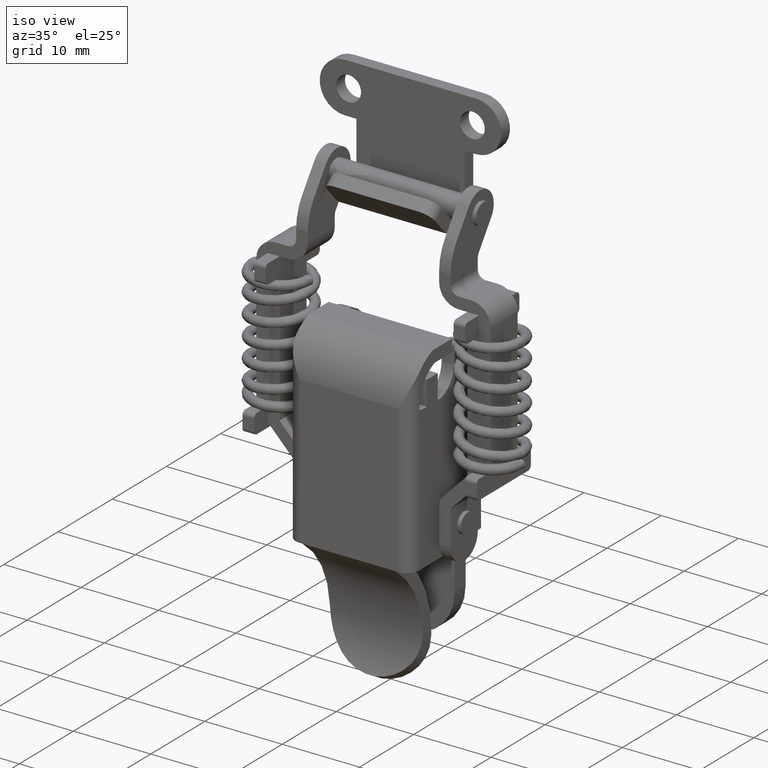
[diagram: clean part render]
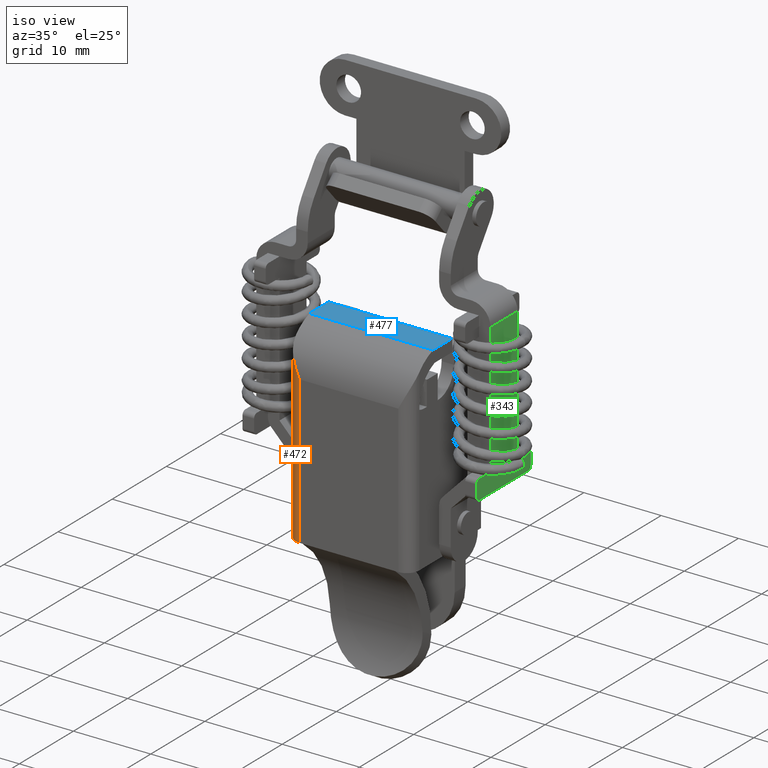
[diagram: same view with three faces highlighted in distinct colors, each labeled with its STEP entity id]
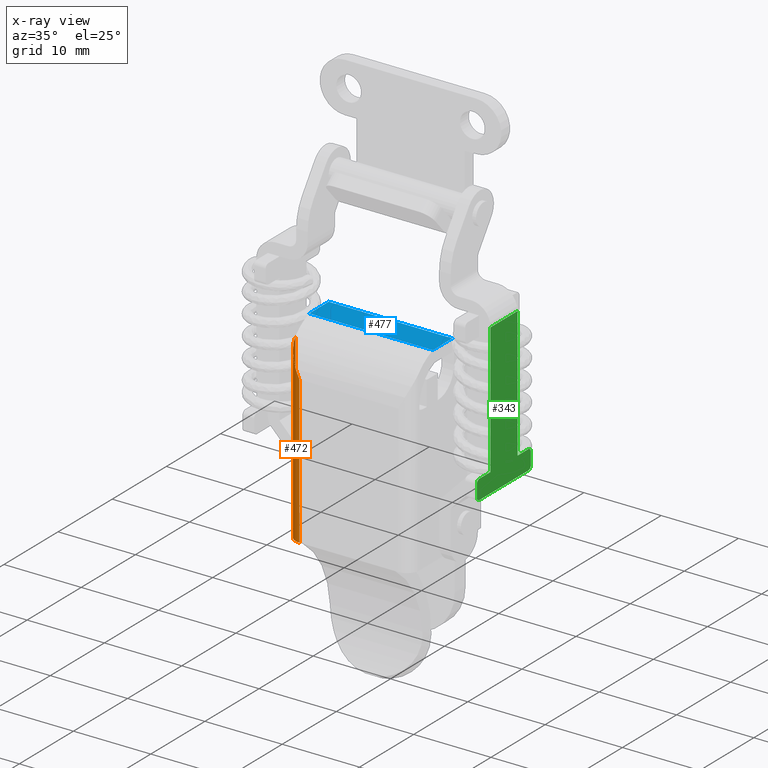
[diagram: x-ray of the same camera — body ghosted, the three highlighted faces saturated]
A machine part, iso view with three faces highlighted in distinct colors.
The next image is the same camera in x-ray (body ghosted, the three faces saturated) — at least one of them is partly hidden behind the body in this view.
Their STEP definitions:

[orange] entity #472 — the highlighted cylindrical surface (edge-blend (fillet) strip) has radius 1.6 mm, axis along (0, 0, 1).
#472=ADVANCED_FACE('',(#2304),#2303,.T.);
#2303=CYLINDRICAL_SURFACE('',#3851,1.60000000000E+00);
#2304=FACE_OUTER_BOUND('',#3852,.T.);
#3848=CARTESIAN_POINT('',(-6.40000000000E+00,-6.09108641419E+00,0.00000000000E+00));
#3849=DIRECTION('',(-0.00000000000E+00,-0.00000000000E+00,1.00000000000E+00));
#3850=DIRECTION('',(1.00000000000E+00,-0.00000000000E+00,-0.00000000000E+00));
#3851=AXIS2_PLACEMENT_3D('',#3848,#3849,#3850);
#3852=EDGE_LOOP('',(#7221,#7222,#7223,#7224,#7225,#7226));
#7221=ORIENTED_EDGE('',*,*,#7957,.F.);
#7222=ORIENTED_EDGE('',*,*,#8023,.F.);
#7223=ORIENTED_EDGE('',*,*,#7918,.F.);
#7224=ORIENTED_EDGE('',*,*,#7977,.F.);
#7225=ORIENTED_EDGE('',*,*,#8024,.T.);
#7226=ORIENTED_EDGE('',*,*,#7986,.F.);
#7918=EDGE_CURVE('',#10702,#10674,#10709,.T.);
#7957=EDGE_CURVE('',#10968,#10975,#10976,.T.);
#7977=EDGE_CURVE('',#11100,#10702,#11108,.T.);
#7986=EDGE_CURVE('',#10975,#11001,#11168,.T.);
#8023=EDGE_CURVE('',#10674,#10968,#11407,.T.);
#8024=EDGE_CURVE('',#11100,#11001,#11413,.T.);
#10674=VERTEX_POINT('',#13898);
#10702=VERTEX_POINT('',#13924);
#10709=(BOUNDED_CURVE() B_SPLINE_CURVE(3,(#13929,#13930,#13931,#13932,#13933,#13934,#13935,#13936,#13937,#13938,#13939,#13940),.UNSPECIFIED.,.F.,.F.) B_SPLINE_CURVE_WITH_KNOTS((4,2,2,2,2,4),(1.22663473335E-18,1.19883457203E-03,2.39766914406E-03,3.59650371609E-03,4.19592100211E-03,4.79533828813E-03),.UNSPECIFIED.) CURVE() GEOMETRIC_REPRESENTATION_ITEM() RATIONAL_B_SPLINE_CURVE((1.00000000000E+00,1.00000000000E+00,1.00000000000E+00,1.00000000000E+00,1.00000000000E+00,1.00000000000E+00,1.00000000000E+00,1.00000000000E+00,1.00000000000E+00,1.00000000000E+00,1.00000000000E+00,1.00000000000E+00)) REPRESENTATION_ITEM('') );
#10968=VERTEX_POINT('',#14099);
#10975=VERTEX_POINT('',#14103);
#10976=CIRCLE('',#14107,1.60000000000E+00);
#11001=VERTEX_POINT('',#14118);
#11100=VERTEX_POINT('',#14178);
#11108=LINE('',#14184,#14185);
#11168=LINE('',#14218,#14219);
#11407=LINE('',#14357,#14358);
#11413=LINE('',#14360,#14361);
#13898=CARTESIAN_POINT('',(-6.40000000000E+00,-7.69108641419E+00,-5.70000000000E+00));
#13924=CARTESIAN_POINT('',(-8.00000000000E+00,-6.09108641419E+00,-1.62078438913E+00));
#13929=CARTESIAN_POINT('',(-8.00000000000E+00,-6.09108641419E+00,-1.62078438913E+00));
#13930=CARTESIAN_POINT('',(-8.00000000000E+00,-6.36672019593E+00,-1.91809366507E+00));
#13931=CARTESIAN_POINT('',(-7.93261998663E+00,-6.60400937679E+00,-2.23364364578E+00));
#13932=CARTESIAN_POINT('',(-7.72826737503E+00,-7.01180340077E+00,-2.89956982599E+00));
#13933=CARTESIAN_POINT('',(-7.59390520976E+00,-7.17484823045E+00,-3.23738502570E+00));
#13934=CARTESIAN_POINT('',(-7.29060719336E+00,-7.43524717519E+00,-3.92778857894E+00));
#13935=CARTESIAN_POINT('',(-7.11993075254E+00,-7.53219572587E+00,-4.28219951631E+00));
#13936=CARTESIAN_POINT('',(-6.85564508561E+00,-7.62769359890E+00,-4.81181410447E+00));
#13937=CARTESIAN_POINT('',(-6.76584707086E+00,-7.65142570576E+00,-4.98861639669E+00));
#13938=CARTESIAN_POINT('',(-6.58417057713E+00,-7.68312409672E+00,-5.34335520072E+00));
#13939=CARTESIAN_POINT('',(-6.49167708779E+00,-7.69108641419E+00,-5.52246776187E+00));
#13940=CARTESIAN_POINT('',(-6.40000000000E+00,-7.69108641419E+00,-5.70000000000E+00));
#14099=CARTESIAN_POINT('',(-6.40000000000E+00,-7.69108641419E+00,-2.48000000000E+01));
#14103=CARTESIAN_POINT('',(-8.00000000000E+00,-6.09108641419E+00,-2.48000000000E+01));
#14104=CARTESIAN_POINT('',(-6.40000000000E+00,-6.09108641419E+00,-2.48000000000E+01));
#14105=DIRECTION('',(0.00000000000E+00,-0.00000000000E+00,-1.00000000000E+00));
#14106=DIRECTION('',(-1.00000000000E+00,-0.00000000000E+00,0.00000000000E+00));
#14107=AXIS2_PLACEMENT_3D('',#14104,#14105,#14106);
#14118=CARTESIAN_POINT('',(-8.00000000000E+00,-6.09108641419E+00,-6.03238075794E+00));
#14178=CARTESIAN_POINT('',(-8.00000000000E+00,-6.09108641419E+00,-5.70000000000E+00));
#14184=CARTESIAN_POINT('',(-8.00000000000E+00,-6.09108641419E+00,-5.70000000000E+00));
#14185=VECTOR('',#14186,4.07921561087E+00);
#14186=DIRECTION('',(0.00000000000E+00,0.00000000000E+00,1.00000000000E+00));
#14218=CARTESIAN_POINT('',(-8.00000000000E+00,-6.09108641419E+00,-2.48000000000E+01));
#14219=VECTOR('',#14220,1.87676192421E+01);
#14220=DIRECTION('',(0.00000000000E+00,0.00000000000E+00,1.00000000000E+00));
#14357=CARTESIAN_POINT('',(-6.40000000000E+00,-7.69108641419E+00,-5.70000000000E+00));
#14358=VECTOR('',#14359,1.91000000000E+01);
#14359=DIRECTION('',(0.00000000000E+00,0.00000000000E+00,-1.00000000000E+00));
#14360=CARTESIAN_POINT('',(-8.00000000000E+00,-6.09108641419E+00,-5.70000000000E+00));
#14361=VECTOR('',#14362,3.32380757938E-01);
#14362=DIRECTION('',(0.00000000000E+00,-5.34434318767E-15,-1.00000000000E+00));

[blue] entity #477 — the highlighted planar face has unit normal (0, 0, 1).
#477=ADVANCED_FACE('',(#2354),#2353,.T.);
#2353=PLANE('',#3876);
#2354=FACE_OUTER_BOUND('',#3877,.T.);
#3873=CARTESIAN_POINT('',(-9.60000000000E+00,-3.92104439508E+00,0.00000000000E+00));
#3874=DIRECTION('',(0.00000000000E+00,0.00000000000E+00,1.00000000000E+00));
#3875=DIRECTION('',(1.00000000000E+00,0.00000000000E+00,-0.00000000000E+00));
#3876=AXIS2_PLACEMENT_3D('',#3873,#3874,#3875);
#3877=EDGE_LOOP('',(#7245,#7246,#7247,#7248));
#7245=ORIENTED_EDGE('',*,*,#7978,.F.);
#7246=ORIENTED_EDGE('',*,*,#7916,.F.);
#7247=ORIENTED_EDGE('',*,*,#7985,.T.);
#7248=ORIENTED_EDGE('',*,*,#8028,.T.);
#7916=EDGE_CURVE('',#10688,#10695,#10696,.T.);
#7978=EDGE_CURVE('',#10695,#11114,#11115,.T.);
#7985=EDGE_CURVE('',#10688,#11155,#11162,.T.);
#8028=EDGE_CURVE('',#11155,#11114,#11437,.T.);
#10688=VERTEX_POINT('',#13915);
#10695=VERTEX_POINT('',#13920);
#10696=LINE('',#13921,#13922);
#11114=VERTEX_POINT('',#14187);
#11115=LINE('',#14188,#14189);
#11155=VERTEX_POINT('',#14211);
#11162=LINE('',#14215,#14216);
#11437=LINE('',#14372,#14373);
#13915=CARTESIAN_POINT('',(8.00000000000E+00,-3.56458581371E+00,0.00000000000E+00));
#13920=CARTESIAN_POINT('',(-8.00000000000E+00,-3.56458581371E+00,0.00000000000E+00));
#13921=CARTESIAN_POINT('',(8.00000000000E+00,-3.56458581371E+00,0.00000000000E+00));
#13922=VECTOR('',#13923,1.60000000000E+01);
#13923=DIRECTION('',(-1.00000000000E+00,0.00000000000E+00,0.00000000000E+00));
#14187=CARTESIAN_POINT('',(-8.00000000000E+00,0.00000000000E+00,0.00000000000E+00));
#14188=CARTESIAN_POINT('',(-8.00000000000E+00,-3.56458581371E+00,0.00000000000E+00));
#14189=VECTOR('',#14190,3.56458581371E+00);
#14190=DIRECTION('',(0.00000000000E+00,1.00000000000E+00,0.00000000000E+00));
#14211=CARTESIAN_POINT('',(8.00000000000E+00,0.00000000000E+00,0.00000000000E+00));
#14215=CARTESIAN_POINT('',(8.00000000000E+00,-3.56458581371E+00,0.00000000000E+00));
#14216=VECTOR('',#14217,3.56458581371E+00);
#14217=DIRECTION('',(0.00000000000E+00,1.00000000000E+00,0.00000000000E+00));
#14372=CARTESIAN_POINT('',(8.00000000000E+00,0.00000000000E+00,0.00000000000E+00));
#14373=VECTOR('',#14374,1.60000000000E+01);
#14374=DIRECTION('',(-1.00000000000E+00,0.00000000000E+00,0.00000000000E+00));

[green] entity #343 — the highlighted planar face has unit normal (-1, -0, -0).
#343=ADVANCED_FACE('',(#1000),#999,.F.);
#999=PLANE('',#3192);
#1000=FACE_OUTER_BOUND('',#3193,.T.);
#3189=CARTESIAN_POINT('',(1.51499993895E+01,3.11966354984E+00,-8.00768608374E+00));
#3190=DIRECTION('',(-1.00000000000E+00,-0.00000000000E+00,-0.00000000000E+00));
#3191=DIRECTION('',(0.00000000000E+00,0.00000000000E+00,-1.00000000000E+00));
#3192=AXIS2_PLACEMENT_3D('',#3189,#3190,#3191);
#3193=EDGE_LOOP('',(#6529,#6530,#6531,#6532,#6533,#6534,#6535,#6536,#6537,#6538,#6539,#6540));
#6529=ORIENTED_EDGE('',*,*,#7632,.T.);
#6530=ORIENTED_EDGE('',*,*,#7685,.T.);
#6531=ORIENTED_EDGE('',*,*,#7539,.T.);
#6532=ORIENTED_EDGE('',*,*,#7684,.T.);
#6533=ORIENTED_EDGE('',*,*,#7676,.T.);
#6534=ORIENTED_EDGE('',*,*,#7673,.F.);
#6535=ORIENTED_EDGE('',*,*,#7670,.T.);
#6536=ORIENTED_EDGE('',*,*,#7667,.F.);
#6537=ORIENTED_EDGE('',*,*,#7661,.F.);
#6538=ORIENTED_EDGE('',*,*,#7686,.F.);
#6539=ORIENTED_EDGE('',*,*,#7641,.F.);
#6540=ORIENTED_EDGE('',*,*,#7625,.F.);
#7539=EDGE_CURVE('',#8179,#8180,#8181,.T.);
#7625=EDGE_CURVE('',#8750,#8757,#8758,.T.);
#7632=EDGE_CURVE('',#8750,#8805,#8806,.T.);
#7641=EDGE_CURVE('',#8757,#8866,#8867,.T.);
#7661=EDGE_CURVE('',#8995,#9002,#9003,.T.);
#7667=EDGE_CURVE('',#9002,#9043,#9044,.T.);
#7670=EDGE_CURVE('',#9063,#9043,#9064,.T.);
#7673=EDGE_CURVE('',#9063,#9083,#9084,.T.);
#7676=EDGE_CURVE('',#9103,#9083,#9104,.T.);
#7684=EDGE_CURVE('',#8180,#9103,#9153,.T.);
#7685=EDGE_CURVE('',#8805,#8179,#9159,.T.);
#7686=EDGE_CURVE('',#8866,#8995,#9165,.T.);
#8179=VERTEX_POINT('',#12353);
#8180=VERTEX_POINT('',#12354);
#8181=CIRCLE('',#12358,5.00000000000E-01);
#8750=VERTEX_POINT('',#12699);
#8757=VERTEX_POINT('',#12703);
#8758=LINE('',#12704,#12705);
#8805=VERTEX_POINT('',#12732);
#8806=CIRCLE('',#12736,5.00000000000E-01);
#8866=VERTEX_POINT('',#12770);
#8867=LINE('',#12771,#12772);
#8995=VERTEX_POINT('',#12848);
#9002=VERTEX_POINT('',#12853);
#9003=LINE('',#12854,#12855);
#9043=VERTEX_POINT('',#12877);
#9044=LINE('',#12878,#12879);
#9063=VERTEX_POINT('',#12888);
#9064=CIRCLE('',#12892,5.00000000000E-01);
#9083=VERTEX_POINT('',#12901);
#9084=LINE('',#12902,#12903);
#9103=VERTEX_POINT('',#12912);
#9104=CIRCLE('',#12916,5.00000000000E-01);
#9153=LINE('',#12940,#12941);
#9159=LINE('',#12943,#12944);
#9165=LINE('',#12946,#12947);
#12353=CARTESIAN_POINT('',(1.51499993895E+01,-7.90173005384E+00,-2.88702002177E+01));
#12354=CARTESIAN_POINT('',(1.51499993895E+01,-7.40201030031E+00,-2.93534619999E+01));
#12355=CARTESIAN_POINT('',(1.51499993895E+01,-7.40201030031E+00,-2.88534619999E+01));
#12356=DIRECTION('',(1.00000000000E+00,0.00000000000E+00,0.00000000000E+00));
#12357=DIRECTION('',(-0.00000000000E+00,-0.00000000000E+00,1.00000000000E+00));
#12358=AXIS2_PLACEMENT_3D('',#12355,#12356,#12357);
#12699=CARTESIAN_POINT('',(1.51499993895E+01,-7.40196824163E+00,-2.68534620000E+01));
#12703=CARTESIAN_POINT('',(1.51499993895E+01,-5.35368268091E+00,-2.68534620000E+01));
#12704=CARTESIAN_POINT('',(1.51499993895E+01,-7.40196824163E+00,-2.68534620000E+01));
#12705=VECTOR('',#12706,2.04828556072E+00);
#12706=DIRECTION('',(0.00000000000E+00,1.00000000000E+00,8.67240815181E-14));
#12732=CARTESIAN_POINT('',(1.51499993895E+01,-7.90173005384E+00,-2.73380305043E+01));
#12733=CARTESIAN_POINT('',(1.51499993895E+01,-7.40196824163E+00,-2.73534620000E+01));
#12734=DIRECTION('',(1.00000000000E+00,0.00000000000E+00,0.00000000000E+00));
#12735=DIRECTION('',(-0.00000000000E+00,-0.00000000000E+00,1.00000000000E+00));
#12736=AXIS2_PLACEMENT_3D('',#12733,#12734,#12735);
#12770=CARTESIAN_POINT('',(1.51499993895E+01,-5.35368268093E+00,-9.94821116704E+00));
#12771=CARTESIAN_POINT('',(1.51499993895E+01,-5.35368268091E+00,-2.68534620000E+01));
#12772=VECTOR('',#12773,1.69052508330E+01);
#12773=DIRECTION('',(0.00000000000E+00,-1.44901492781E-12,1.00000000000E+00));
#12848=CARTESIAN_POINT('',(1.51499993895E+01,-3.54460973761E-01,-9.94821116704E+00));
#12853=CARTESIAN_POINT('',(1.51499993895E+01,-3.54014608475E-01,-2.68534620000E+01));
#12854=CARTESIAN_POINT('',(1.51499993895E+01,-3.54460973761E-01,-9.94821116704E+00));
#12855=VECTOR('',#12856,1.69052508389E+01);
#12856=DIRECTION('',(0.00000000000E+00,2.64039433866E-05,-9.99999999651E-01));
#12877=CARTESIAN_POINT('',(1.51499993895E+01,1.60204152506E+00,-2.68534620000E+01));
#12878=CARTESIAN_POINT('',(1.51499993895E+01,-3.54014608475E-01,-2.68534620000E+01));
#12879=VECTOR('',#12880,1.95605613353E+00);
#12880=DIRECTION('',(0.00000000000E+00,1.00000000000E+00,0.00000000000E+00));
#12888=CARTESIAN_POINT('',(1.51499993895E+01,2.10180333726E+00,-2.73688934957E+01));
#12889=CARTESIAN_POINT('',(1.51499993895E+01,1.60204152506E+00,-2.73534620000E+01));
#12890=DIRECTION('',(1.00000000000E+00,0.00000000000E+00,0.00000000000E+00));
#12891=DIRECTION('',(-0.00000000000E+00,-0.00000000000E+00,1.00000000000E+00));
#12892=AXIS2_PLACEMENT_3D('',#12889,#12890,#12891);
#12901=CARTESIAN_POINT('',(1.51499993895E+01,2.10180333726E+00,-2.88688934957E+01));
#12902=CARTESIAN_POINT('',(1.51499993895E+01,2.10180333726E+00,-2.73688934957E+01));
#12903=VECTOR('',#12904,1.49999999995E+00);
#12904=DIRECTION('',(0.00000000000E+00,0.00000000000E+00,-1.00000000000E+00));
#12912=CARTESIAN_POINT('',(1.51499993895E+01,1.60204152506E+00,-2.93534619999E+01));
#12913=CARTESIAN_POINT('',(1.51499993895E+01,1.60204152506E+00,-2.88534619999E+01));
#12914=DIRECTION('',(1.00000000000E+00,0.00000000000E+00,0.00000000000E+00));
#12915=DIRECTION('',(-0.00000000000E+00,-0.00000000000E+00,1.00000000000E+00));
#12916=AXIS2_PLACEMENT_3D('',#12913,#12914,#12915);
#12940=CARTESIAN_POINT('',(1.51499993895E+01,-7.40201030031E+00,-2.93534601670E+01));
#12941=VECTOR('',#12942,9.00405182536E+00);
#12942=DIRECTION('',(0.00000000000E+00,1.00000000000E+00,0.00000000000E+00));
#12943=CARTESIAN_POINT('',(1.51499993895E+01,-7.90173005384E+00,-2.73380305043E+01));
#12944=VECTOR('',#12945,1.53216971337E+00);
#12945=DIRECTION('',(0.00000000000E+00,0.00000000000E+00,-1.00000000000E+00));
#12946=CARTESIAN_POINT('',(1.51499993895E+01,-5.35368268093E+00,-9.94821116704E+00));
#12947=VECTOR('',#12948,4.99922170717E+00);
#12948=DIRECTION('',(0.00000000000E+00,1.00000000000E+00,0.00000000000E+00));